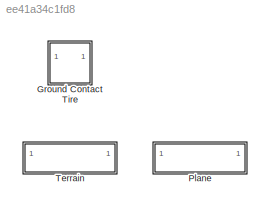
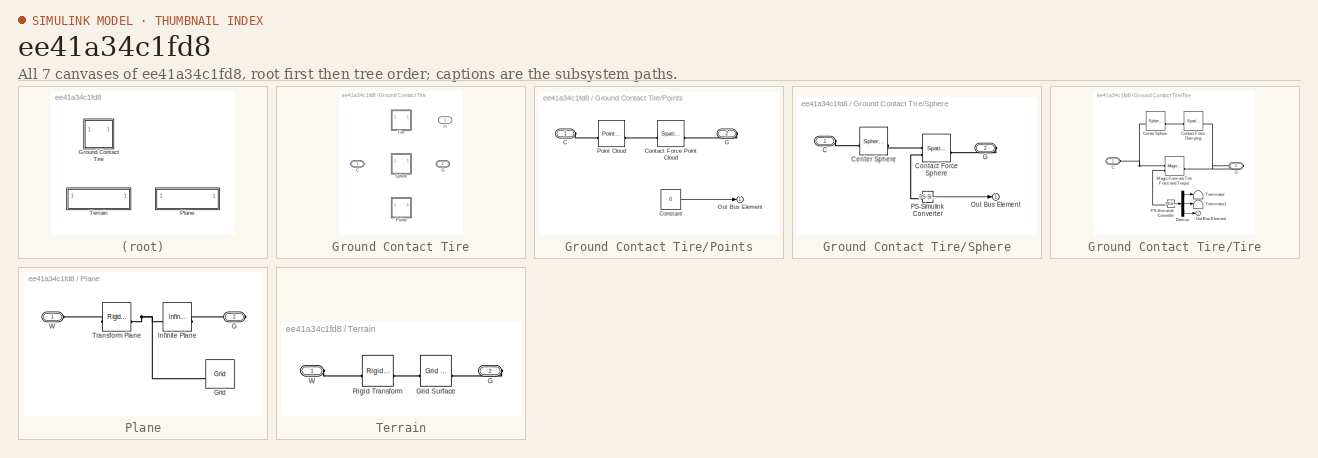
[diagram: thumbnail index - all 7 canvases of the model, root first then tree order]
MODEL slx_ee41a34c1fd8
KIND library
CONFIG SolverName = VariableStepAuto
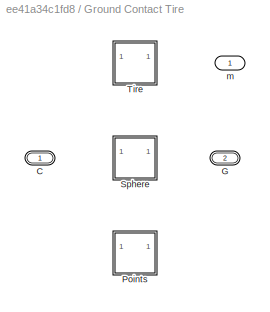
BLOCK [SubSystem] Ground Contact Tire
  LabelModeActiveChoice = Points
  Variant = on
  VariantControl = Choice
  VariantControlMode = label
BLOCK [PMIOPort] Ground Contact Tire/C
  Side = Left
BLOCK [PMIOPort] Ground Contact Tire/G
  Port = 2
  Side = Right
BLOCK [SubSystem] Ground Contact Tire/Points
  VariantControl = Points
BLOCK [PMIOPort] Ground Contact Tire/Points/C
  Side = Left
BLOCK [Constant] Ground Contact Tire/Points/Constant
  Value = 0
BLOCK [Reference] Ground Contact Tire/Points/Contact Force Point Cloud  REF=sm_lib/Forces and
Torques/Spatial
Contact Force
  SourceBlock = sm_lib/Forces and\nTorques/Spatial\nContact Force
  SourceType = Spatial\nContact Force
BLOCK [PMIOPort] Ground Contact Tire/Points/G
  Port = 2
  Side = Right
BLOCK [Outport] Ground Contact Tire/Points/Out Bus Element
BLOCK [Reference] Ground Contact Tire/Points/Point Cloud  REF=sm_lib/Curves and Surfaces/Point Cloud
  SourceBlock = sm_lib/Curves and Surfaces/Point Cloud
  SourceType = Point Cloud
BLOCK [SubSystem] Ground Contact Tire/Sphere
  VariantControl = Sphere
BLOCK [PMIOPort] Ground Contact Tire/Sphere/C
  Side = Left
BLOCK [Reference] Ground Contact Tire/Sphere/Center Sphere  REF=sm_lib/Body Elements/Spherical Solid
  SourceBlock = sm_lib/Body Elements/Spherical Solid
  SourceType = Spherical Solid
BLOCK [Reference] Ground Contact Tire/Sphere/Contact Force Sphere  REF=sm_lib/Forces and
Torques/Spatial
Contact Force
  SourceBlock = sm_lib/Forces and\nTorques/Spatial\nContact Force
  SourceType = Spatial\nContact Force
BLOCK [PMIOPort] Ground Contact Tire/Sphere/G
  Port = 2
  Side = Right
BLOCK [Outport] Ground Contact Tire/Sphere/Out Bus Element
BLOCK [Reference] Ground Contact Tire/Sphere/PS-Simulink Converter  REF=nesl_utility/PS-Simulink
Converter
  SourceBlock = nesl_utility/PS-Simulink\nConverter
  SourceType = PS-Simulink\nConverter
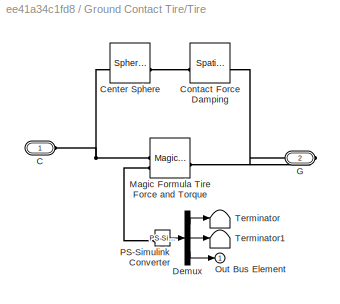
BLOCK [SubSystem] Ground Contact Tire/Tire
  VariantControl = Tire
BLOCK [PMIOPort] Ground Contact Tire/Tire/C
  Side = Left
BLOCK [Reference] Ground Contact Tire/Tire/Center Sphere  REF=sm_lib/Body Elements/Spherical Solid
  SourceBlock = sm_lib/Body Elements/Spherical Solid
  SourceType = Spherical Solid
BLOCK [Reference] Ground Contact Tire/Tire/Contact Force Damping  REF=sm_lib/Forces and
Torques/Spatial
Contact Force
  SourceBlock = sm_lib/Forces and\nTorques/Spatial\nContact Force
  SourceType = Spatial\nContact Force
BLOCK [Demux] Ground Contact Tire/Tire/Demux
  Outputs = 3
BLOCK [PMIOPort] Ground Contact Tire/Tire/G
  Port = 2
  Side = Right
BLOCK [Reference] Ground Contact Tire/Tire/Magic Formula Tire Force and Torque  REF=sm_lib/Forces and
Torques/Magic Formula Tire
Force and Torque
  SourceBlock = sm_lib/Forces and\nTorques/Magic Formula Tire\nForce and Torque
  SourceType = Magic Formula Tire\nForce and Torque
BLOCK [Outport] Ground Contact Tire/Tire/Out Bus Element
BLOCK [Reference] Ground Contact Tire/Tire/PS-Simulink Converter  REF=nesl_utility/PS-Simulink
Converter
  SourceBlock = nesl_utility/PS-Simulink\nConverter
  SourceType = PS-Simulink\nConverter
BLOCK [Terminator] Ground Contact Tire/Tire/Terminator
BLOCK [Terminator] Ground Contact Tire/Tire/Terminator1
BLOCK [Outport] Ground Contact Tire/m
BLOCK [SubSystem] Plane
  VariantControl = Plane
BLOCK [PMIOPort] Plane/G
  Port = 2
  Side = Right
BLOCK [Reference] Plane/Grid  REF=grid_element/Grid  (lib defined in slx_16d8daf64c1c, slx_5771955e9ea6, +1 more)
  SourceBlock = grid_element/Grid
  SourceType = Grid
BLOCK [Reference] Plane/Infinite Plane  REF=sm_lib/Curves and Surfaces/Infinite Plane
  SourceBlock = sm_lib/Curves and Surfaces/Infinite Plane
  SourceType = Infinite Plane
BLOCK [Reference] Plane/Transform Plane  REF=sm_lib/Frames and
Transforms/Rigid
Transform
  SourceBlock = sm_lib/Frames and\nTransforms/Rigid\nTransform
  SourceType = Rigid\nTransform
BLOCK [PMIOPort] Plane/W
  Side = Left
BLOCK [SubSystem] Terrain
BLOCK [PMIOPort] Terrain/G
  Port = 2
  Side = Right
BLOCK [Reference] Terrain/Grid Surface  REF=sm_lib/Curves and Surfaces/Grid Surface
  SourceBlock = sm_lib/Curves and Surfaces/Grid Surface
  SourceType = Grid Surface
BLOCK [Reference] Terrain/Rigid Transform  REF=sm_lib/Frames and
Transforms/Rigid
Transform
  SourceBlock = sm_lib/Frames and\nTransforms/Rigid\nTransform
  SourceType = Rigid\nTransform
BLOCK [PMIOPort] Terrain/W
  Side = Left
PLINE Plane/G:RConn1 -- Plane/Infinite Plane:RConn1
PNET net1: Plane/Grid:RConn1 -- Plane/Infinite Plane:LConn1 -- Plane/Transform Plane:RConn1
PLINE Plane/Transform Plane:LConn1 -- Plane/W:RConn1
PLINE Terrain/G:RConn1 -- Terrain/Grid Surface:RConn1
PLINE Terrain/Grid Surface:LConn1 -- Terrain/Rigid Transform:RConn1
PLINE Terrain/Rigid Transform:LConn1 -- Terrain/W:RConn1
note: PNET lines group multi-terminal physical nets as a canonical sorted terminal list (undirected conserving connections); 2-terminal nets keep the pairwise PLINE form
